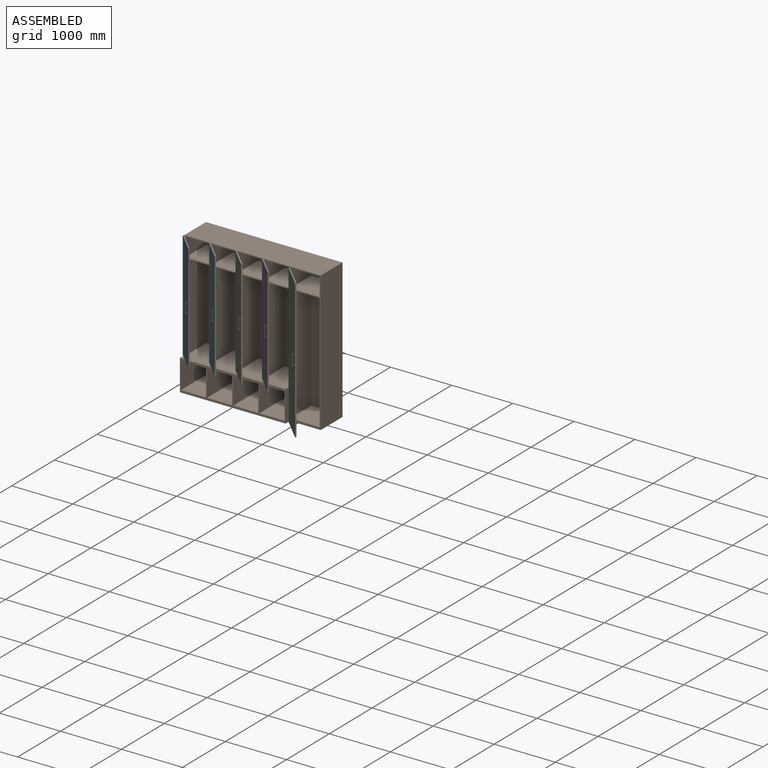
[diagram: assembled view]
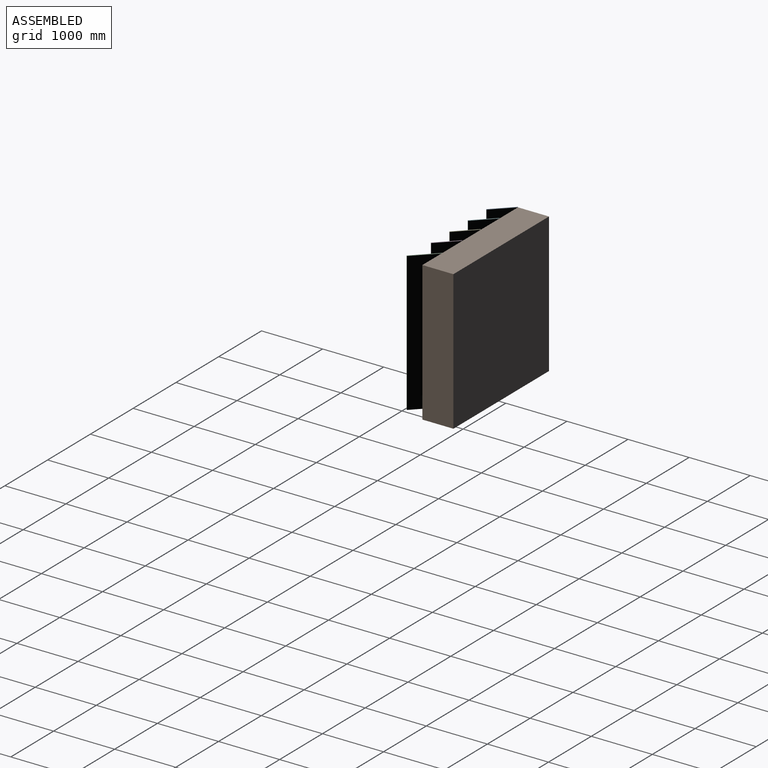
[diagram: assembled view, second angle]
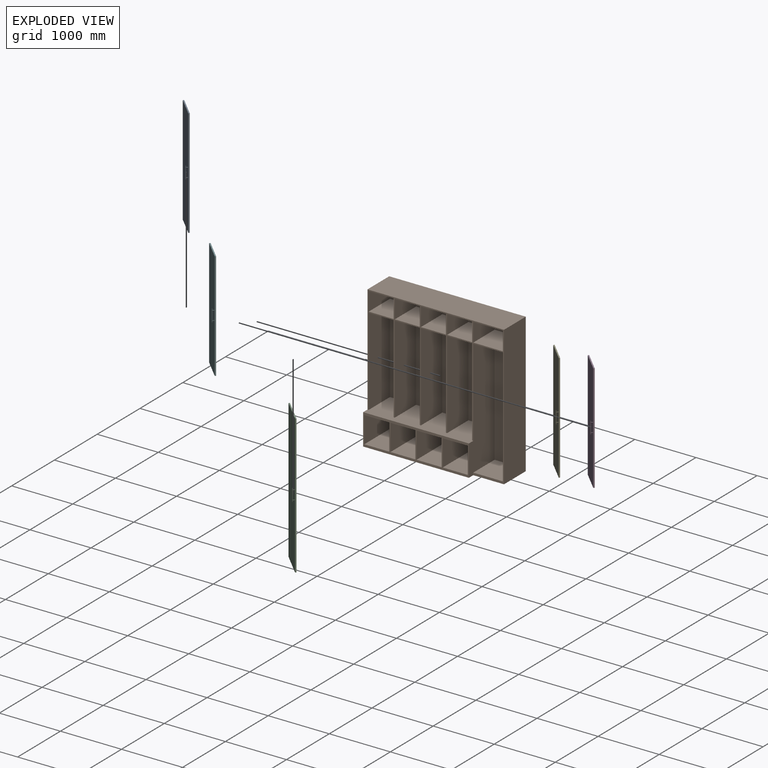
[diagram: exploded view]
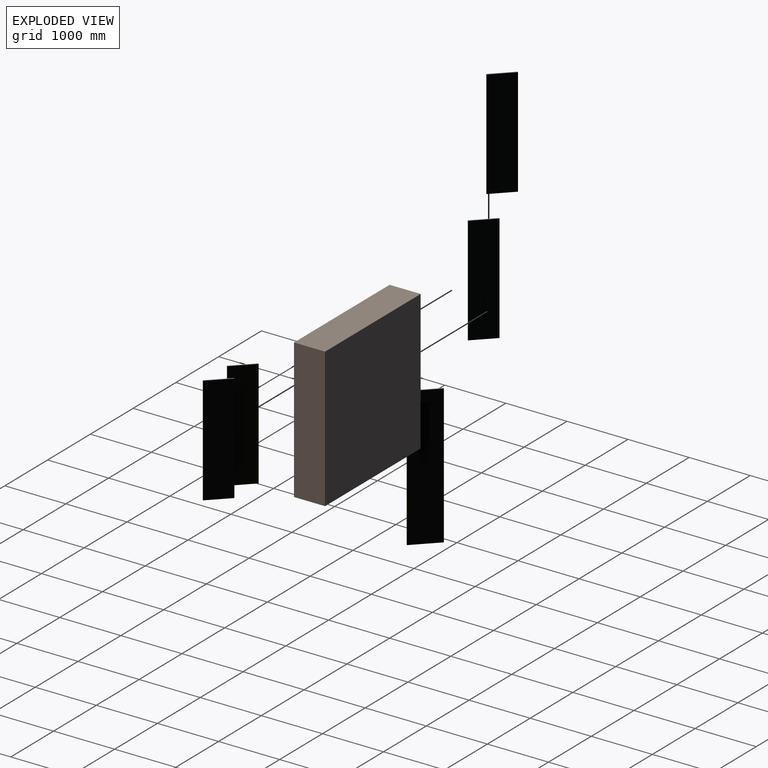
[diagram: exploded view, second angle]
ASSEMBLY  parts=6 mates=2
PART A: 13 faces, bbox 428x54x1768.5 mm
  f0: cylinder r=3.17mm len=31.75mm, axis (0,1,0), area 593mm2, adj f1,f5,f10
  f1: plane 1.2x0.06mm, normal (0,-1,0), area 0mm2, adj f0,f10
  f2: cylinder r=3.17mm len=31.75mm, axis (0,1,0), area 593.1mm2, adj f3,f5,f10
  f3: plane 1.2x0.06mm, normal (0,-1,0), area 0mm2, adj f2,f10
  f4: plane 1768.48x19.05mm, normal (-1,0,0), area 33689.4mm2, adj f5,f7,f8,f9
  f5: plane 1768.48x427.99mm, normal (0,-1,0), area 756826.3mm2, adj f0,f2,f4,f6,f8,f9
  f6: plane 1768.48x19.05mm, normal (1,0,0), area 33689.4mm2, adj f5,f7,f8,f9
  f7: plane 1768.48x427.99mm, normal (0,1,0), area 756889.6mm2, adj f4,f6,f8,f9
  f8: plane 427.99x19.05mm, normal (0,0,1), area 8153.2mm2, adj f4,f5,f6,f7
  f9: plane 427.99x19.05mm, normal (0,0,-1), area 8153.2mm2, adj f4,f5,f6,f7
  f10: cylinder r=3.17mm len=203.2mm, axis (0,0,-1), area 3973.1mm2, adj f0,f1,f2,f3,f11,f12
  f11: plane 6.35x6.35mm, normal (0,0,1), area 31.7mm2, adj f10
  f12: plane 6.35x6.35mm, normal (0,0,-1), area 31.7mm2, adj f10
PART B: 74 faces, bbox 2235.2x609.6x2286 mm
  f0: plane 1905x498.48mm, normal (-1,0,0), area 949594.9mm2, adj f1,f2,f71,f73
  f1: plane 498.48x485.14mm, normal (0,0,1), area 241830.2mm2, adj f0,f2,f72,f73
  f2: plane 2286x2235.2mm, normal (0,-1,0), area 312192.9mm2, adj f0,f1,f3,f4,f5,f6,f8,f9
  f3: plane 1731.01x600.08mm, normal (0,0,1), area 991256.1mm2, adj f2,f4,f5,f7,f13,f14,f16,f22
  f4: plane 1435.1x498.48mm, normal (1,0,0), area 715361.5mm2, adj f2,f3,f6,f7
  f5: plane 1435.1x498.48mm, normal (-1,0,0), area 715361.5mm2, adj f2,f3,f6,f7
  f6: plane 498.48x408.94mm, normal (0,0,-1), area 203846.4mm2, adj f2,f4,f5,f7
  f7: plane 1435.1x408.94mm, normal (0,-1,0), area 586869.8mm2, adj f3,f4,f5,f6
  f8: plane 498.48x304.8mm, normal (-1,0,0), area 151935.2mm2, adj f2,f9,f11,f12
  f9: plane 498.48x408.94mm, normal (0,0,1), area 203846.4mm2, adj f2,f8,f10,f12
  f10: plane 498.48x304.8mm, normal (1,0,0), area 151935.2mm2, adj f2,f9,f11,f12
  f11: plane 498.48x408.94mm, normal (0,0,-1), area 203846.4mm2, adj f2,f8,f10,f12
  f12: plane 408.94x304.8mm, normal (0,-1,0), area 124644.9mm2, adj f8,f9,f10,f11
  f13: plane 1435.1x498.48mm, normal (1,0,0), area 715361.5mm2, adj f2,f3,f15,f16
  f14: plane 1435.1x498.48mm, normal (-1,0,0), area 715361.5mm2, adj f2,f3,f15,f16
  f15: plane 498.48x408.94mm, normal (0,0,-1), area 203846.4mm2, adj f2,f13,f14,f16
  f16: plane 1435.1x408.94mm, normal (0,-1,0), area 586869.8mm2, adj f3,f13,f14,f15
  f17: plane 498.48x304.8mm, normal (-1,0,0), area 151935.2mm2, adj f2,f18,f20,f21
  f18: plane 498.48x408.94mm, normal (0,0,1), area 203846.4mm2, adj f2,f17,f19,f21
  f19: plane 498.48x304.8mm, normal (1,0,0), area 151935.2mm2, adj f2,f18,f20,f21
  f20: plane 498.48x408.94mm, normal (0,0,-1), area 203846.4mm2, adj f2,f17,f19,f21
  f21: plane 408.94x304.8mm, normal (0,-1,0), area 124644.9mm2, adj f17,f18,f19,f20
  f22: plane 1435.1x498.48mm, normal (1,0,0), area 715361.5mm2, adj f2,f3,f24,f25
  f23: plane 1435.1x498.48mm, normal (-1,0,0), area 715361.5mm2, adj f2,f3,f24,f25
  f24: plane 498.48x408.94mm, normal (0,0,-1), area 203846.4mm2, adj f2,f22,f23,f25
  f25: plane 1435.1x408.94mm, normal (0,-1,0), area 586869.8mm2, adj f3,f22,f23,f24
  f26: plane 498.48x304.8mm, normal (-1,0,0), area 151935.2mm2, adj f2,f27,f29,f30
  f27: plane 498.48x408.94mm, normal (0,0,1), area 203846.4mm2, adj f2,f26,f28,f30
  f28: plane 498.48x304.8mm, normal (1,0,0), area 151935.2mm2, adj f2,f27,f29,f30
  f29: plane 498.48x408.94mm, normal (0,0,-1), area 203846.4mm2, adj f2,f26,f28,f30
  f30: plane 408.94x304.8mm, normal (0,-1,0), area 124644.9mm2, adj f26,f27,f28,f29
  f31: plane 600.08x431.8mm, normal (1,0,0), area 259112.4mm2, adj f32,f34,f35,f46
  f32: plane 600.08x408.94mm, normal (0,0,1), area 245394.7mm2, adj f31,f33,f35,f46
  f33: plane 600.08x431.8mm, normal (-1,0,0), area 259112.4mm2, adj f32,f34,f35,f46
  f34: plane 600.08x408.94mm, normal (0,0,-1), area 245394.7mm2, adj f31,f33,f35,f46
  f35: plane 431.8x408.94mm, normal (0,-1,0), area 176580.3mm2, adj f31,f32,f33,f34
  f36: plane 600.08x431.8mm, normal (1,0,0), area 259112.4mm2, adj f37,f39,f40,f46
  f37: plane 600.08x408.94mm, normal (0,0,1), area 245394.7mm2, adj f36,f38,f40,f46
  f38: plane 600.08x431.8mm, normal (-1,0,0), area 259112.4mm2, adj f37,f39,f40,f46
  f39: plane 600.08x408.94mm, normal (0,0,-1), area 245394.7mm2, adj f36,f38,f40,f46
  f40: plane 431.8x408.94mm, normal (0,-1,0), area 176580.3mm2, adj f36,f37,f38,f39
  f41: plane 600.08x431.8mm, normal (1,0,0), area 259112.4mm2, adj f42,f44,f45,f46
  f42: plane 600.08x408.94mm, normal (0,0,1), area 245394.7mm2, adj f41,f43,f45,f46
  f43: plane 600.08x431.8mm, normal (-1,0,0), area 259112.4mm2, adj f42,f44,f45,f46
  f44: plane 600.08x408.94mm, normal (0,0,-1), area 245394.7mm2, adj f41,f43,f45,f46
  f45: plane 431.8x408.94mm, normal (0,-1,0), area 176580.3mm2, adj f41,f42,f43,f44
  f46: plane 1731.01x508mm, normal (0,-1,0), area 173031.9mm2, adj f3,f31,f32,f33,f34,f36,f37,f38
  f47: plane 2286x609.6mm, normal (-1,0,0), area 1212900.8mm2, adj f2,f3,f46,f49,f50,f56
  f48: plane 2286x508mm, normal (1,0,0), area 1161288mm2, adj f2,f49,f50,f56
  f49: plane 2286x2235.2mm, normal (0,1,0), area 5109667.2mm2, adj f47,f48,f50,f56
  f50: plane 2235.2x609.6mm, normal (0,0,-1), area 1311352.2mm2, adj f2,f46,f47,f48,f49,f72
  f51: plane 600.08x431.8mm, normal (1,0,0), area 259112.4mm2, adj f46,f52,f54,f55
  f52: plane 600.08x408.94mm, normal (0,0,1), area 245394.7mm2, adj f46,f51,f53,f55
  f53: plane 600.08x431.8mm, normal (-1,0,0), area 259112.4mm2, adj f46,f52,f54,f55
  f54: plane 600.08x408.94mm, normal (0,0,-1), area 245394.7mm2, adj f46,f51,f53,f55
  f55: plane 431.8x408.94mm, normal (0,-1,0), area 176580.3mm2, adj f51,f52,f53,f54
  f56: plane 2235.2x508mm, normal (0,0,1), area 1135481.6mm2, adj f2,f47,f48,f49
  f57: plane 1435.1x498.48mm, normal (1,0,0), area 715361.5mm2, adj f2,f3,f59,f60
  f58: plane 1435.1x498.48mm, normal (-1,0,0), area 715361.5mm2, adj f2,f3,f59,f60
  f59: plane 498.48x408.94mm, normal (0,0,-1), area 203846.4mm2, adj f2,f57,f58,f60
  f60: plane 1435.1x408.94mm, normal (0,-1,0), area 586869.8mm2, adj f3,f57,f58,f59
  f61: plane 498.48x408.94mm, normal (0,0,-1), area 203846.4mm2, adj f2,f62,f64,f65
  f62: plane 498.48x304.8mm, normal (1,0,0), area 151935.2mm2, adj f2,f61,f63,f65
  f63: plane 498.48x408.94mm, normal (0,0,1), area 203846.4mm2, adj f2,f62,f64,f65
  f64: plane 498.48x304.8mm, normal (-1,0,0), area 151935.2mm2, adj f2,f61,f63,f65
  f65: plane 408.94x304.8mm, normal (0,-1,0), area 124644.9mm2, adj f61,f62,f63,f64
  f66: plane 498.48x304.8mm, normal (1,0,0), area 151935.2mm2, adj f2,f67,f69,f70
  f67: plane 498.48x485.14mm, normal (0,0,1), area 241830.2mm2, adj f2,f66,f68,f70
  f68: plane 498.48x304.8mm, normal (-1,0,0), area 151935.2mm2, adj f2,f67,f69,f70
  f69: plane 498.48x485.14mm, normal (0,0,-1), area 241830.2mm2, adj f2,f66,f68,f70
  f70: plane 485.14x304.8mm, normal (0,-1,0), area 147870.7mm2, adj f66,f67,f68,f69
  f71: plane 498.48x485.14mm, normal (0,0,-1), area 241830.2mm2, adj f0,f2,f72,f73
  f72: plane 1943.1x600.08mm, normal (1,0,0), area 1001207.7mm2, adj f1,f2,f3,f46,f50,f71,f73
  f73: plane 1905x485.14mm, normal (0,-1,0), area 924191.7mm2, adj f0,f1,f71,f72
PART C: 11 faces, bbox 504.2x54x2276.5 mm
  f0: cylinder r=3.17mm len=31.75mm, axis (0,1,0), area 593.1mm2, adj f3,f8
  f1: cylinder r=3.17mm len=31.75mm, axis (0,1,0), area 593.1mm2, adj f3,f8
  f2: plane 2276.48x19.05mm, normal (-1,0,0), area 43366.8mm2, adj f3,f5,f6,f7
  f3: plane 2276.48x504.19mm, normal (0,-1,0), area 1147712.6mm2, adj f0,f1,f2,f4,f6,f7
  f4: plane 2276.48x19.05mm, normal (1,0,0), area 43366.8mm2, adj f3,f5,f6,f7
  f5: plane 2276.48x504.19mm, normal (0,1,0), area 1147775.9mm2, adj f2,f4,f6,f7
  f6: plane 504.19x19.05mm, normal (0,0,1), area 9604.8mm2, adj f2,f3,f4,f5
  f7: plane 504.19x19.05mm, normal (0,0,-1), area 9604.8mm2, adj f2,f3,f4,f5
  f8: cylinder r=3.17mm len=203.2mm, axis (0,0,-1), area 3973mm2, adj f0,f1,f9,f10
  f9: plane 6.35x6.35mm, normal (0,0,1), area 31.7mm2, adj f8
  f10: plane 6.35x6.35mm, normal (0,0,-1), area 31.7mm2, adj f8
PART D: same geometry as A
PART E: same geometry as A
PART F: same geometry as A
PLACE A rot(axis=(0,0,-1),45deg) t=(198.09,434.64,591.31)mm
PLACE B t=(211.56,346.51,74.24)mm
PLACE C rot(axis=(0,0,-1),45deg) t=(1929.1,434.64,64.72)mm
PLACE D rot(axis=(0,0,-1),45deg) t=(1493.49,434.64,591.31)mm
PLACE E rot(axis=(0,0,-1),45deg) t=(1061.69,434.64,591.31)mm
PLACE F rot(axis=(0,0,-1),45deg) t=(629.89,434.64,591.31)mm
MATE cylindrical B.f69 <-> C.f6  axis (0,0,1) through (1942.57,448.11,2341.19)mm
MATE cylindrical B.f56 <-> A.f8  axis (0,0,-1) through (211.56,448.11,2360.24)mm
